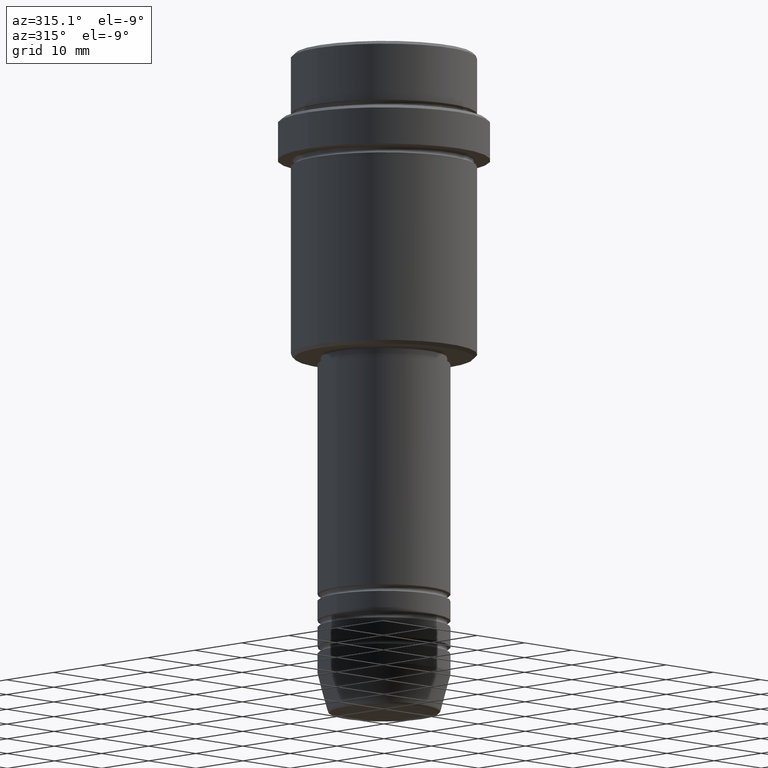
[diagram: clean part render]
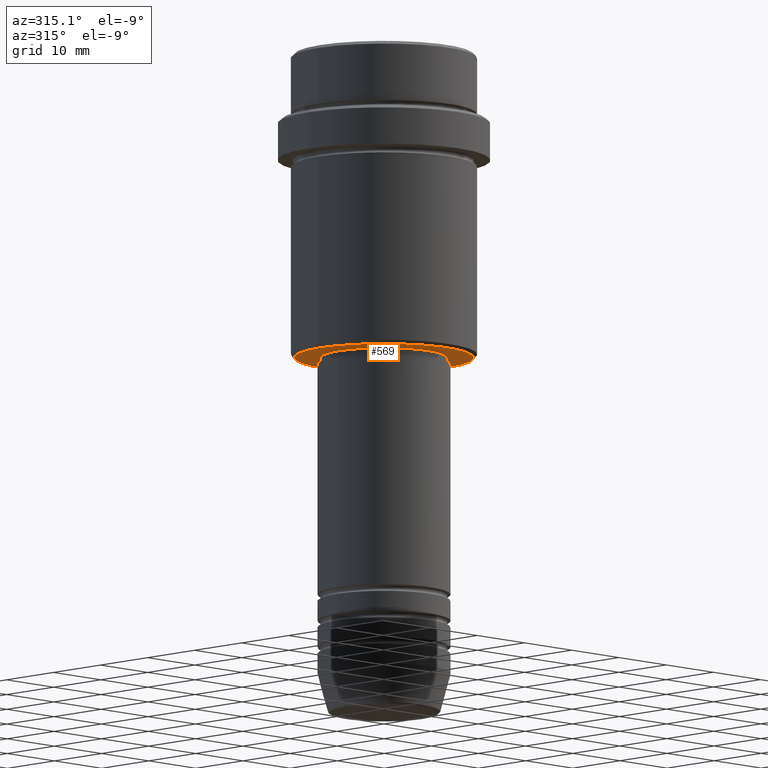
[diagram: same view with one face highlighted and labeled with its STEP entity id]
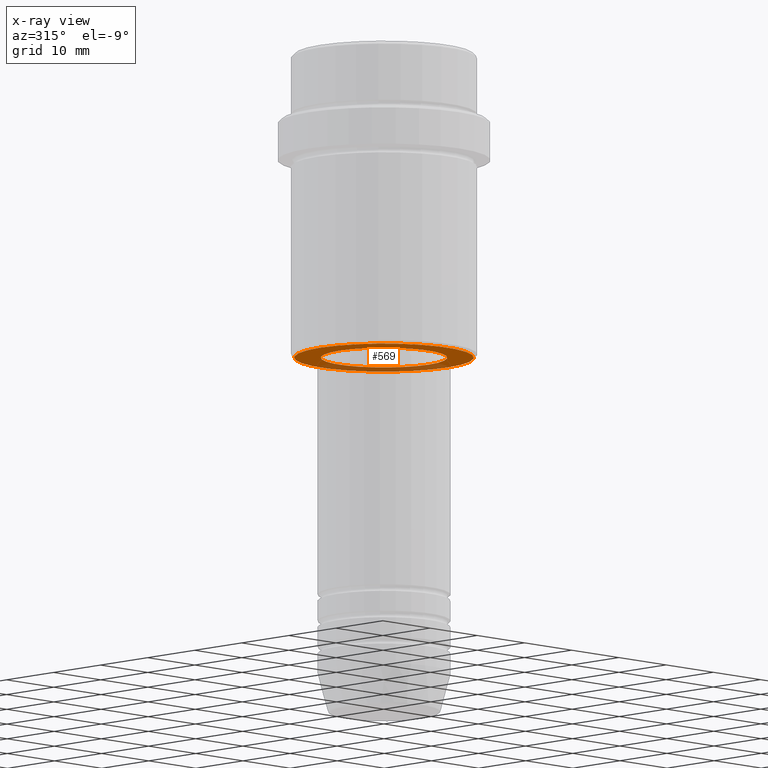
[diagram: x-ray of the same camera — body ghosted, the highlighted face saturated]
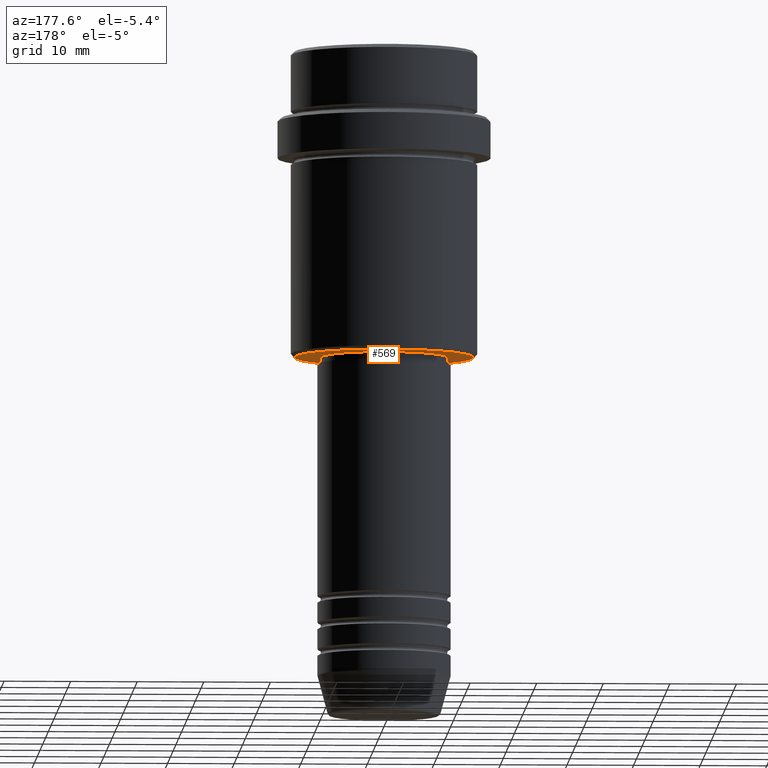
[diagram: same view with one face highlighted and labeled with its STEP entity id]
A machine part, auxiliary view. The second image highlights one B-rep face of the part: STEP entity #569.
The next image is the same camera in x-ray: the body ghosted, the highlighted face saturated — about 29% of this face is hidden behind the body in this view.
A second angle (auxiliary view) of the same face is appended — the face is thin or edge-on in the first view.
In plain terms, the highlighted planar face has unit normal (0, 0, -1).
Its self-contained STEP definition (entity closure, byte-faithful):
#25 = CIRCLE ( 'NONE', #821, 9.499999999999996447 ) ;
#27 = AXIS2_PLACEMENT_3D ( 'NONE', #281, #419, #309 ) ;
#88 = ORIENTED_EDGE ( 'NONE', *, *, #1372, .T. ) ;
#163 = EDGE_CURVE ( 'NONE', #1154, #1336, #798, .T. ) ;
#205 = CIRCLE ( 'NONE', #1397, 9.499999999999996447 ) ;
#239 = DIRECTION ( 'NONE',  ( 0.000000000000000000, 0.000000000000000000, -1.000000000000000000 ) ) ;
#281 = CARTESIAN_POINT ( 'NONE',  ( 0.000000000000000000, 14.00000000000000000, -46.00000000000000000 ) ) ;
#296 = CARTESIAN_POINT ( 'NONE',  ( -9.499999999999996447, 1.163414459189985091E-15, -46.00000000000000000 ) ) ;
#306 = EDGE_CURVE ( 'NONE', #1022, #1389, #25, .T. ) ;
#309 = DIRECTION ( 'NONE',  ( -1.000000000000000000, 0.000000000000000000, -0.000000000000000000 ) ) ;
#372 = ORIENTED_EDGE ( 'NONE', *, *, #819, .T. ) ;
#419 = DIRECTION ( 'NONE',  ( 0.000000000000000000, 0.000000000000000000, -1.000000000000000000 ) ) ;
#455 = CARTESIAN_POINT ( 'NONE',  ( 0.000000000000000000, 0.000000000000000000, -46.00000000000000000 ) ) ;
#458 = DIRECTION ( 'NONE',  ( -0.000000000000000000, -0.000000000000000000, 1.000000000000000000 ) ) ;
#542 = DIRECTION ( 'NONE',  ( -1.000000000000000000, 0.000000000000000000, 0.000000000000000000 ) ) ;
#569 = ADVANCED_FACE ( 'NONE', ( #1068, #634 ), #1074, .T. ) ;
#634 = FACE_BOUND ( 'NONE', #1343, .T. ) ;
#659 = AXIS2_PLACEMENT_3D ( 'NONE', #722, #950, #976 ) ;
#684 = DIRECTION ( 'NONE',  ( -0.000000000000000000, -0.000000000000000000, 1.000000000000000000 ) ) ;
#705 = DIRECTION ( 'NONE',  ( 1.000000000000000000, 0.000000000000000000, 0.000000000000000000 ) ) ;
#713 = ORIENTED_EDGE ( 'NONE', *, *, #306, .T. ) ;
#722 = CARTESIAN_POINT ( 'NONE',  ( 0.000000000000000000, 0.000000000000000000, -46.00000000000000000 ) ) ;
#792 = CARTESIAN_POINT ( 'NONE',  ( 9.499999999999996447, 0.000000000000000000, -46.00000000000000000 ) ) ;
#798 = CIRCLE ( 'NONE', #659, 13.49999999999998401 ) ;
#819 = EDGE_CURVE ( 'NONE', #1336, #1154, #1100, .T. ) ;
#821 = AXIS2_PLACEMENT_3D ( 'NONE', #1014, #458, #1225 ) ;
#833 = ORIENTED_EDGE ( 'NONE', *, *, #163, .T. ) ;
#950 = DIRECTION ( 'NONE',  ( 0.000000000000000000, 0.000000000000000000, -1.000000000000000000 ) ) ;
#976 = DIRECTION ( 'NONE',  ( -1.000000000000000000, 0.000000000000000000, 0.000000000000000000 ) ) ;
#978 = CARTESIAN_POINT ( 'NONE',  ( -13.49999999999998401, 1.683889348827609470E-15, -46.00000000000000000 ) ) ;
#1002 = EDGE_LOOP ( 'NONE', ( #372, #833 ) ) ;
#1014 = CARTESIAN_POINT ( 'NONE',  ( 0.000000000000000000, 0.000000000000000000, -46.00000000000000000 ) ) ;
#1022 = VERTEX_POINT ( 'NONE', #296 ) ;
#1054 = AXIS2_PLACEMENT_3D ( 'NONE', #455, #239, #542 ) ;
#1068 = FACE_OUTER_BOUND ( 'NONE', #1002, .T. ) ;
#1074 = PLANE ( 'NONE',  #27 ) ;
#1100 = CIRCLE ( 'NONE', #1054, 13.49999999999998401 ) ;
#1154 = VERTEX_POINT ( 'NONE', #978 ) ;
#1225 = DIRECTION ( 'NONE',  ( 1.000000000000000000, 0.000000000000000000, 0.000000000000000000 ) ) ;
#1236 = CARTESIAN_POINT ( 'NONE',  ( 0.000000000000000000, 0.000000000000000000, -46.00000000000000000 ) ) ;
#1331 = CARTESIAN_POINT ( 'NONE',  ( 13.49999999999998401, 0.000000000000000000, -46.00000000000000000 ) ) ;
#1336 = VERTEX_POINT ( 'NONE', #1331 ) ;
#1343 = EDGE_LOOP ( 'NONE', ( #88, #713 ) ) ;
#1372 = EDGE_CURVE ( 'NONE', #1389, #1022, #205, .T. ) ;
#1389 = VERTEX_POINT ( 'NONE', #792 ) ;
#1397 = AXIS2_PLACEMENT_3D ( 'NONE', #1236, #684, #705 ) ;